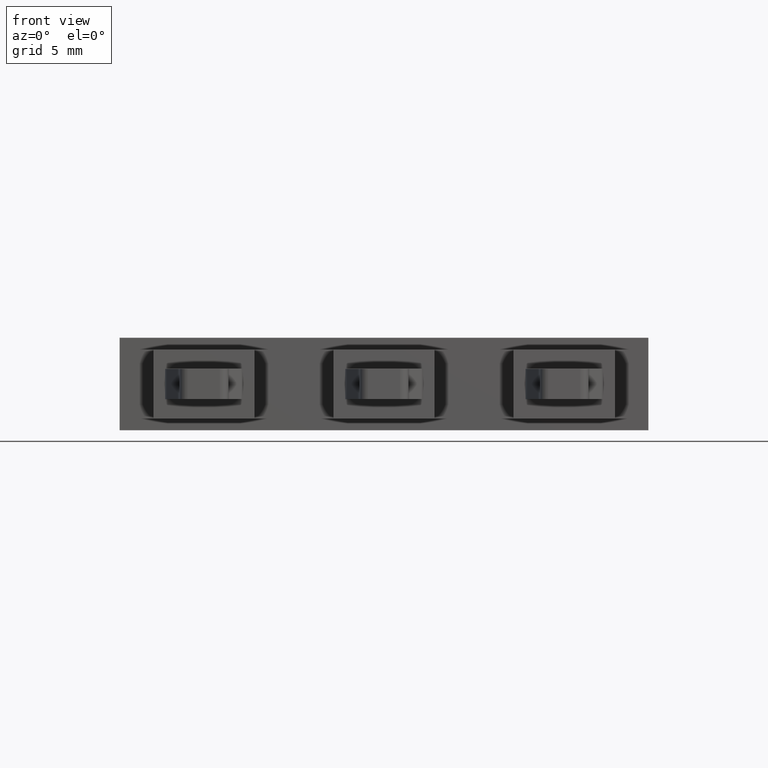
[diagram: clean part render]
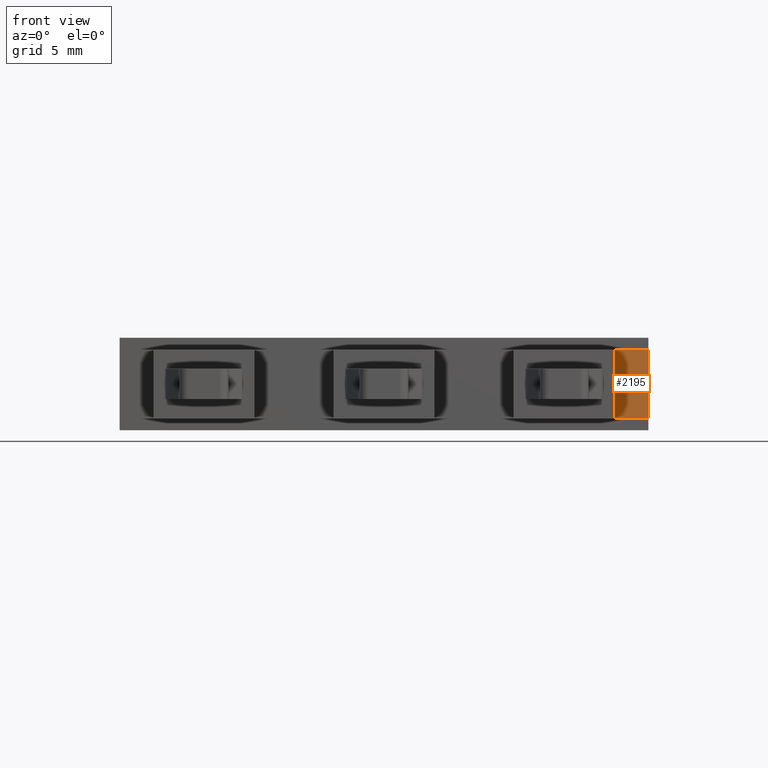
[diagram: same view with one face highlighted and labeled with its STEP entity id]
A machine part, front view. The second image highlights one B-rep face of the part: STEP entity #2195.
In plain terms, the highlighted planar face has unit normal (-0, 1, 0).
Its self-contained STEP definition (entity closure, byte-faithful):
#86 = EDGE_LOOP ( 'NONE', ( #422, #477, #471, #441 ) ) ;
#157 = VERTEX_POINT ( 'NONE', #683 ) ;
#183 = VERTEX_POINT ( 'NONE', #707 ) ;
#191 = VERTEX_POINT ( 'NONE', #644 ) ;
#244 = VERTEX_POINT ( 'NONE', #731 ) ;
#422 = ORIENTED_EDGE ( 'NONE', *, *, #2054, .F. ) ;
#441 = ORIENTED_EDGE ( 'NONE', *, *, #1968, .T. ) ;
#471 = ORIENTED_EDGE ( 'NONE', *, *, #2051, .F. ) ;
#477 = ORIENTED_EDGE ( 'NONE', *, *, #1969, .F. ) ;
#644 = CARTESIAN_POINT ( 'NONE',  ( 29.40000000000000200, 4.173744683200198700E-015, 0.0000000000000000000 ) ) ;
#683 = CARTESIAN_POINT ( 'NONE',  ( 29.40000000000000200, 4.173744683200198700E-015, 4.100000000000000500 ) ) ;
#707 = CARTESIAN_POINT ( 'NONE',  ( 31.39999999999999900, 4.454769886308441400E-015, 0.0000000000000000000 ) ) ;
#731 = CARTESIAN_POINT ( 'NONE',  ( 31.39999999999999900, 4.383646223793392300E-015, 4.100000000000000500 ) ) ;
#794 = LINE ( 'NONE', #856, #939 ) ;
#809 = LINE ( 'NONE', #853, #949 ) ;
#844 = DIRECTION ( 'NONE',  ( 1.000000000000000000, 2.775557561562890400E-016, -0.0000000000000000000 ) ) ;
#853 = CARTESIAN_POINT ( 'NONE',  ( 29.39999999999999500, 4.173744683200197900E-015, 0.0000000000000000000 ) ) ;
#856 = CARTESIAN_POINT ( 'NONE',  ( 31.39999999999999900, 4.728856195512776100E-015, 4.100000000000000500 ) ) ;
#862 = DIRECTION ( 'NONE',  ( 1.000000000000000000, 0.0000000000000000000, -0.0000000000000000000 ) ) ;
#939 = VECTOR ( 'NONE', #844, 1000.000000000000000 ) ;
#949 = VECTOR ( 'NONE', #862, 1000.000000000000000 ) ;
#1026 = VECTOR ( 'NONE', #1330, 1000.000000000000000 ) ;
#1057 = VECTOR ( 'NONE', #1351, 1000.000000000000000 ) ;
#1207 = AXIS2_PLACEMENT_3D ( 'NONE', #1878, #1911, #1901 ) ;
#1310 = CARTESIAN_POINT ( 'NONE',  ( 29.39999999999999500, 4.173744683200197100E-015, 4.100000000000000500 ) ) ;
#1324 = LINE ( 'NONE', #1310, #1026 ) ;
#1330 = DIRECTION ( 'NONE',  ( 0.0000000000000000000, 0.0000000000000000000, 1.000000000000000000 ) ) ;
#1339 = LINE ( 'NONE', #1341, #1057 ) ;
#1341 = CARTESIAN_POINT ( 'NONE',  ( 31.39999999999999900, 4.728856195512776100E-015, 4.100000000000000500 ) ) ;
#1351 = DIRECTION ( 'NONE',  ( -0.0000000000000000000, -0.0000000000000000000, -1.000000000000000000 ) ) ;
#1875 = FACE_OUTER_BOUND ( 'NONE', #86, .T. ) ;
#1878 = CARTESIAN_POINT ( 'NONE',  ( 31.39999999999999900, 4.728856195512776100E-015, 4.100000000000000500 ) ) ;
#1882 = PLANE ( 'NONE',  #1207 ) ;
#1901 = DIRECTION ( 'NONE',  ( -1.000000000000000000, -2.775557561562890400E-016, 0.0000000000000000000 ) ) ;
#1911 = DIRECTION ( 'NONE',  ( -2.775557561562890400E-016, 1.000000000000000000, 0.0000000000000000000 ) ) ;
#1968 = EDGE_CURVE ( 'NONE', #191, #183, #809, .T. ) ;
#1969 = EDGE_CURVE ( 'NONE', #157, #244, #794, .T. ) ;
#2051 = EDGE_CURVE ( 'NONE', #191, #157, #1324, .T. ) ;
#2054 = EDGE_CURVE ( 'NONE', #244, #183, #1339, .T. ) ;
#2195 = ADVANCED_FACE ( 'NONE', ( #1875 ), #1882, .F. ) ;